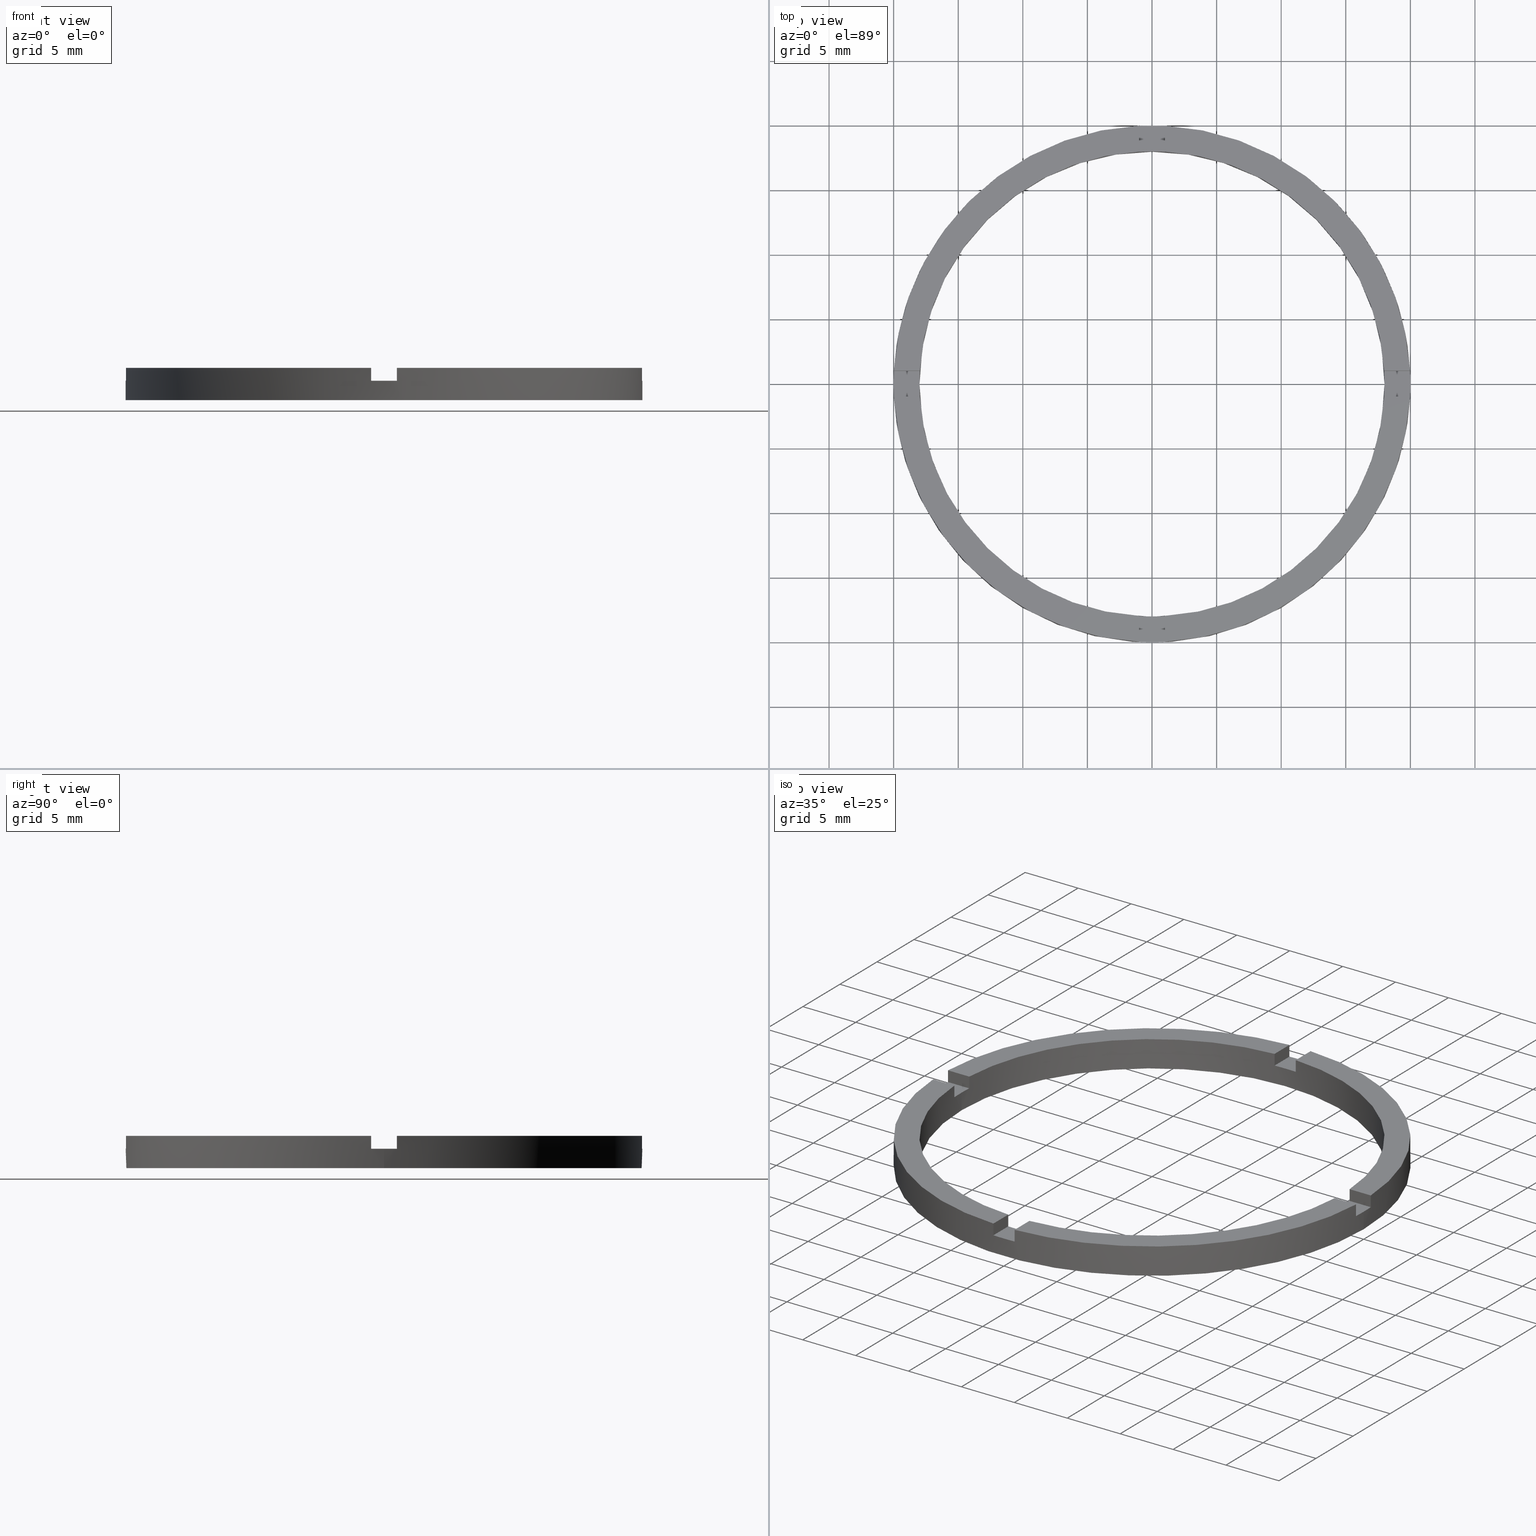
[diagram: canonical four-view strip — front | top / right | iso, engineering-drawing reading convention]
A machine part, canonical four-view strip (front | top / right | iso — engineering-drawing reading convention). The complete STEP part file that produces these views, byte-faithful:
ISO-10303-21;
HEADER;
FILE_DESCRIPTION (( 'STEP AP203' ),
    '1' );
FILE_NAME ('514086.step',
    '2024-12-26T02:36:12',
    ( 'MSI' ),
    ( '' ),
    'SwSTEP 2.0',
    'SolidWorks 2020',
    '' );
FILE_SCHEMA (( 'CONFIG_CONTROL_DESIGN' ));
ENDSEC;

DATA;
#1 = ORIENTED_EDGE ( 'NONE', *, *, #397, .F. ) ;
#2 = AXIS2_PLACEMENT_3D ( 'NONE', #396, #19, #80 ) ;
#3 = DIRECTION ( 'NONE',  ( 0.000000000000000000, 0.000000000000000000, 1.000000000000000000 ) ) ;
#4 = CARTESIAN_POINT ( 'NONE',  ( 17.97220075561143560, 0.9999999999998427924, 2.500000000000000000 ) ) ;
#5 = PLANE ( 'NONE',  #770 ) ;
#6 = CARTESIAN_POINT ( 'NONE',  ( -20.00000000000000000, 0.000000000000000000, 1.500000000000000000 ) ) ;
#7 = EDGE_CURVE ( 'NONE', #127, #643, #310, .T. ) ;
#8 = ORIENTED_EDGE ( 'NONE', *, *, #410, .T. ) ;
#9 = CARTESIAN_POINT ( 'NONE',  ( 0.9999999999999731326, 10.00000000000000000, 2.500000000000000000 ) ) ;
#10 = CARTESIAN_POINT ( 'NONE',  ( 0.9999999999998395728, -19.97498435543818829, 2.500000000000000000 ) ) ;
#11 = ORIENTED_EDGE ( 'NONE', *, *, #410, .F. ) ;
#12 = CARTESIAN_POINT ( 'NONE',  ( 0.000000000000000000, 0.000000000000000000, 1.500000000000000000 ) ) ;
#13 = ADVANCED_FACE ( 'NONE', ( #306 ), #15, .F. ) ;
#14 = PERSON_AND_ORGANIZATION_ROLE ( 'creator' ) ;
#15 = PLANE ( 'NONE',  #258 ) ;
#16 = APPLICATION_PROTOCOL_DEFINITION ( 'international standard', 'config_control_design', 1994, #758 ) ;
#17 = LINE ( 'NONE', #194, #279 ) ;
#18 = ADVANCED_FACE ( 'NONE', ( #301 ), #555, .T. ) ;
#19 = DIRECTION ( 'NONE',  ( 0.000000000000000000, 0.000000000000000000, 1.000000000000000000 ) ) ;
#20 = VERTEX_POINT ( 'NONE', #137 ) ;
#21 = VECTOR ( 'NONE', #203, 1000.000000000000000 ) ;
#22 = ORIENTED_EDGE ( 'NONE', *, *, #739, .T. ) ;
#23 = ADVANCED_FACE ( 'NONE', ( #568 ), #326, .T. ) ;
#24 = PRODUCT_DEFINITION_SHAPE ( 'NONE', 'NONE',  #701 ) ;
#25 = ORIENTED_EDGE ( 'NONE', *, *, #260, .T. ) ;
#26 = MANIFOLD_SOLID_BREP ( '�г�-����1', #230 ) ;
#27 = FACE_OUTER_BOUND ( 'NONE', #131, .T. ) ;
#28 = EDGE_CURVE ( 'NONE', #486, #573, #291, .T. ) ;
#29 = VECTOR ( 'NONE', #70, 1000.000000000000000 ) ;
#30 = LINE ( 'NONE', #220, #34 ) ;
#31 = CIRCLE ( 'NONE', #2, 18.00000000000000000 ) ;
#32 = FACE_OUTER_BOUND ( 'NONE', #94, .T. ) ;
#33 = DIRECTION ( 'NONE',  ( -0.000000000000000000, -0.000000000000000000, -1.000000000000000000 ) ) ;
#34 = VECTOR ( 'NONE', #266, 1000.000000000000000 ) ;
#35 = ORIENTED_EDGE ( 'NONE', *, *, #533, .T. ) ;
#36 = CIRCLE ( 'NONE', #578, 18.00000000000000000 ) ;
#37 = VECTOR ( 'NONE', #331, 1000.000000000000000 ) ;
#38 = CARTESIAN_POINT ( 'NONE',  ( 0.9999999999998382405, -10.00000000000018119, 1.500000000000000000 ) ) ;
#39 = AXIS2_PLACEMENT_3D ( 'NONE', #118, #340, #204 ) ;
#40 = VECTOR ( 'NONE', #750, 1000.000000000000000 ) ;
#41 = LINE ( 'NONE', #175, #562 ) ;
#42 = PLANE ( 'NONE',  #728 ) ;
#43 = LINE ( 'NONE', #433, #309 ) ;
#44 = CARTESIAN_POINT ( 'NONE',  ( 17.97220075561141783, -1.000000000000157208, 1.500000000000000000 ) ) ;
#45 = DIRECTION ( 'NONE',  ( 0.000000000000000000, 0.000000000000000000, 1.000000000000000000 ) ) ;
#46 = LINE ( 'NONE', #299, #536 ) ;
#47 = ORIENTED_EDGE ( 'NONE', *, *, #533, .F. ) ;
#48 = DIRECTION ( 'NONE',  ( 0.000000000000000000, 0.000000000000000000, 1.000000000000000000 ) ) ;
#49 = EDGE_LOOP ( 'NONE', ( #11, #270, #352, #221 ) ) ;
#50 = CARTESIAN_POINT ( 'NONE',  ( 0.9999999999998393507, -17.97220075561143560, 2.500000000000000000 ) ) ;
#51 = CIRCLE ( 'NONE', #284, 20.00000000000000000 ) ;
#52 = ORIENTED_EDGE ( 'NONE', *, *, #399, .T. ) ;
#53 = DIRECTION ( 'NONE',  ( 0.000000000000000000, 0.000000000000000000, 1.000000000000000000 ) ) ;
#54 = DIRECTION ( 'NONE',  ( -6.505213034913025371E-17, 1.000000000000000000, 0.000000000000000000 ) ) ;
#55 = ORIENTED_EDGE ( 'NONE', *, *, #473, .F. ) ;
#56 = ORIENTED_EDGE ( 'NONE', *, *, #265, .F. ) ;
#57 = DIRECTION ( 'NONE',  ( -0.000000000000000000, -0.000000000000000000, -1.000000000000000000 ) ) ;
#58 = CC_DESIGN_DATE_AND_TIME_ASSIGNMENT ( #654, #553, ( #701 ) ) ;
#59 = ORIENTED_EDGE ( 'NONE', *, *, #435, .F. ) ;
#60 = EDGE_CURVE ( 'NONE', #104, #383, #280, .T. ) ;
#61 = DIRECTION ( 'NONE',  ( 1.000000000000000000, 0.000000000000000000, -0.000000000000000000 ) ) ;
#62 = DIRECTION ( 'NONE',  ( -0.000000000000000000, 0.000000000000000000, 1.000000000000000000 ) ) ;
#63 = DIRECTION ( 'NONE',  ( 1.000000000000000000, 0.000000000000000000, 0.000000000000000000 ) ) ;
#64 = DIRECTION ( 'NONE',  ( 0.000000000000000000, 0.000000000000000000, 1.000000000000000000 ) ) ;
#65 = AXIS2_PLACEMENT_3D ( 'NONE', #591, #539, #354 ) ;
#66 = DIRECTION ( 'NONE',  ( 1.000000000000000000, 0.000000000000000000, -0.000000000000000000 ) ) ;
#67 = CARTESIAN_POINT ( 'NONE',  ( 0.000000000000000000, 0.000000000000000000, 2.500000000000000000 ) ) ;
#68 = CARTESIAN_POINT ( 'NONE',  ( 19.97498435543818829, 0.9999999999998430145, 2.500000000000000000 ) ) ;
#69 = EDGE_CURVE ( 'NONE', #485, #442, #565, .T. ) ;
#70 = DIRECTION ( 'NONE',  ( -0.000000000000000000, -0.000000000000000000, -1.000000000000000000 ) ) ;
#71 = AXIS2_PLACEMENT_3D ( 'NONE', #490, #211, #253 ) ;
#72 = DIRECTION ( 'NONE',  ( -1.000000000000000000, -1.734723475976807341E-16, 0.000000000000000000 ) ) ;
#73 = APPROVAL_ROLE ( '' ) ;
#74 = ADVANCED_FACE ( 'NONE', ( #286 ), #563, .F. ) ;
#75 = CARTESIAN_POINT ( 'NONE',  ( -1.000000000000161871, -10.00000000000018119, 1.500000000000000000 ) ) ;
#76 = ADVANCED_FACE ( 'NONE', ( #311 ), #592, .F. ) ;
#77 = APPROVAL_STATUS ( 'not_yet_approved' ) ;
#78 = CC_DESIGN_APPROVAL ( #580, ( #738 ) ) ;
#79 = EDGE_CURVE ( 'NONE', #629, #697, #292, .T. ) ;
#80 = DIRECTION ( 'NONE',  ( 1.000000000000000000, 0.000000000000000000, 0.000000000000000000 ) ) ;
#81 = ADVANCED_FACE ( 'NONE', ( #305 ), #602, .T. ) ;
#82 = CARTESIAN_POINT ( 'NONE',  ( -17.97220075561142849, -1.000000000000025313, 2.500000000000000000 ) ) ;
#83 = CC_DESIGN_APPROVAL ( #605, ( #701 ) ) ;
#84 = EDGE_CURVE ( 'NONE', #343, #356, #41, .T. ) ;
#85 = CARTESIAN_POINT ( 'NONE',  ( 0.9999999999999731326, 19.97498435543818118, 1.500000000000000000 ) ) ;
#86 = CARTESIAN_POINT ( 'NONE',  ( 9.999999999999994671, 0.9999999999998423483, 1.500000000000000000 ) ) ;
#87 = CARTESIAN_POINT ( 'NONE',  ( 0.000000000000000000, 0.000000000000000000, 2.500000000000000000 ) ) ;
#88 = CARTESIAN_POINT ( 'NONE',  ( 20.00000000000000000, 2.449293598294706513E-15, 1.500000000000000000 ) ) ;
#89 = ORIENTED_EDGE ( 'NONE', *, *, #487, .T. ) ;
#90 = ORIENTED_EDGE ( 'NONE', *, *, #461, .F. ) ;
#91 = CARTESIAN_POINT ( 'NONE',  ( -1.000000000000160538, -19.97498435543817052, 2.500000000000000000 ) ) ;
#92 = AXIS2_PLACEMENT_3D ( 'NONE', #209, #495, #727 ) ;
#93 = ORIENTED_EDGE ( 'NONE', *, *, #386, .T. ) ;
#94 = EDGE_LOOP ( 'NONE', ( #559, #467, #726, #350, #641, #296, #98, #47, #705, #320, #213, #372 ) ) ;
#95 = ORIENTED_EDGE ( 'NONE', *, *, #323, .T. ) ;
#96 = PLANE ( 'NONE',  #665 ) ;
#97 = DIRECTION ( 'NONE',  ( 0.000000000000000000, 0.000000000000000000, 1.000000000000000000 ) ) ;
#98 = ORIENTED_EDGE ( 'NONE', *, *, #514, .T. ) ;
#99 = AXIS2_PLACEMENT_3D ( 'NONE', #671, #257, #597 ) ;
#100 = CARTESIAN_POINT ( 'NONE',  ( 0.000000000000000000, 0.000000000000000000, 0.000000000000000000 ) ) ;
#101 = EDGE_LOOP ( 'NONE', ( #709, #56, #720, #498 ) ) ;
#102 = VERTEX_POINT ( 'NONE', #293 ) ;
#103 = DIRECTION ( 'NONE',  ( -0.000000000000000000, -0.000000000000000000, -1.000000000000000000 ) ) ;
#104 = VERTEX_POINT ( 'NONE', #412 ) ;
#105 = AXIS2_PLACEMENT_3D ( 'NONE', #100, #400, #114 ) ;
#106 = ORIENTED_EDGE ( 'NONE', *, *, #79, .T. ) ;
#107 = DIRECTION ( 'NONE',  ( -0.000000000000000000, -1.000000000000000000, -0.000000000000000000 ) ) ;
#108 = COORDINATED_UNIVERSAL_TIME_OFFSET ( 8, 0, .AHEAD. ) ;
#109 = ORIENTED_EDGE ( 'NONE', *, *, #143, .F. ) ;
#110 = ORIENTED_EDGE ( 'NONE', *, *, #272, .T. ) ;
#111 = DIRECTION ( 'NONE',  ( 1.000000000000000000, 0.000000000000000000, 0.000000000000000000 ) ) ;
#112 = ORIENTED_EDGE ( 'NONE', *, *, #777, .F. ) ;
#113 = EDGE_LOOP ( 'NONE', ( #725, #238, #647, #731 ) ) ;
#114 = DIRECTION ( 'NONE',  ( 1.000000000000000000, 0.000000000000000000, -0.000000000000000000 ) ) ;
#115 = EDGE_LOOP ( 'NONE', ( #112, #185, #121, #232, #90, #188, #707, #453, #760, #239, #756, #348 ) ) ;
#116 = ORIENTED_EDGE ( 'NONE', *, *, #515, .T. ) ;
#117 = CARTESIAN_POINT ( 'NONE',  ( -19.97498435543818118, -1.000000000000025757, 2.500000000000000000 ) ) ;
#118 = CARTESIAN_POINT ( 'NONE',  ( 0.000000000000000000, 0.000000000000000000, 1.500000000000000000 ) ) ;
#119 = ORIENTED_EDGE ( 'NONE', *, *, #386, .F. ) ;
#120 = PERSON ( 'δָ��', 'δָ��', 'δָ��', ('δָ��'), ('δָ��'), ('δָ��') ) ;
#121 = ORIENTED_EDGE ( 'NONE', *, *, #768, .F. ) ;
#122 = DIRECTION ( 'NONE',  ( -0.000000000000000000, 0.000000000000000000, 1.000000000000000000 ) ) ;
#123 = ORIENTED_EDGE ( 'NONE', *, *, #535, .T. ) ;
#124 = EDGE_CURVE ( 'NONE', #517, #697, #283, .T. ) ;
#125 = VERTEX_POINT ( 'NONE', #256 ) ;
#126 = CARTESIAN_POINT ( 'NONE',  ( -18.00000000000000000, 0.000000000000000000, 0.000000000000000000 ) ) ;
#127 = VERTEX_POINT ( 'NONE', #312 ) ;
#128 = CALENDAR_DATE ( 2024, 26, 12 ) ;
#129 = VERTEX_POINT ( 'NONE', #351 ) ;
#130 = CALENDAR_DATE ( 2024, 26, 12 ) ;
#131 = EDGE_LOOP ( 'NONE', ( #619, #59 ) ) ;
#132 = LOCAL_TIME ( 10, 36, 12.00000000000000000, #108 ) ;
#133 = DIRECTION ( 'NONE',  ( -1.000000000000000000, 0.000000000000000000, 0.000000000000000000 ) ) ;
#134 = PERSON_AND_ORGANIZATION_ROLE ( 'design_supplier' ) ;
#135 = COORDINATED_UNIVERSAL_TIME_OFFSET ( 8, 0, .AHEAD. ) ;
#136 = AXIS2_PLACEMENT_3D ( 'NONE', #276, #389, #484 ) ;
#137 = CARTESIAN_POINT ( 'NONE',  ( -17.97220075561142849, 0.9999999999999746869, 2.500000000000000000 ) ) ;
#138 = CARTESIAN_POINT ( 'NONE',  ( -17.97220075561142849, -1.000000000000025313, 1.500000000000000000 ) ) ;
#139 = ADVANCED_FACE ( 'NONE', ( #27, #570 ), #338, .F. ) ;
#140 = CALENDAR_DATE ( 2024, 26, 12 ) ;
#141 = EDGE_CURVE ( 'NONE', #749, #370, #46, .T. ) ;
#142 = APPROVAL_PERSON_ORGANIZATION ( #664, #167, #677 ) ;
#143 = EDGE_CURVE ( 'NONE', #624, #764, #314, .T. ) ;
#144 = PERSON_AND_ORGANIZATION ( #120, #417 ) ;
#145 = VECTOR ( 'NONE', #177, 1000.000000000000000 ) ;
#146 = FACE_OUTER_BOUND ( 'NONE', #226, .T. ) ;
#147 = CARTESIAN_POINT ( 'NONE',  ( 0.000000000000000000, 0.000000000000000000, 0.000000000000000000 ) ) ;
#148 = FACE_OUTER_BOUND ( 'NONE', #113, .T. ) ;
#149 = LINE ( 'NONE', #337, #404 ) ;
#150 = CARTESIAN_POINT ( 'NONE',  ( 0.9999999999999731326, 10.00000000000000000, 1.500000000000000000 ) ) ;
#151 = VECTOR ( 'NONE', #475, 1000.000000000000000 ) ;
#152 = AXIS2_PLACEMENT_3D ( 'NONE', #375, #761, #133 ) ;
#153 = LINE ( 'NONE', #636, #156 ) ;
#154 = CARTESIAN_POINT ( 'NONE',  ( -1.000000000000160760, -17.97220075561141783, 1.500000000000000000 ) ) ;
#155 = CALENDAR_DATE ( 2024, 26, 12 ) ;
#156 = VECTOR ( 'NONE', #297, 1000.000000000000000 ) ;
#157 = PRODUCT_DEFINITION_FORMATION_WITH_SPECIFIED_SOURCE ( '�κ�', '', #745, .NOT_KNOWN. ) ;
#158 = LINE ( 'NONE', #398, #429 ) ;
#159 = FACE_OUTER_BOUND ( 'NONE', #632, .T. ) ;
#160 = DIRECTION ( 'NONE',  ( 0.000000000000000000, 0.000000000000000000, 1.000000000000000000 ) ) ;
#161 = LINE ( 'NONE', #529, #408 ) ;
#162 = LINE ( 'NONE', #751, #145 ) ;
#163 = DIRECTION ( 'NONE',  ( 0.000000000000000000, -0.000000000000000000, 1.000000000000000000 ) ) ;
#164 = VECTOR ( 'NONE', #33, 1000.000000000000000 ) ;
#165 = DATE_AND_TIME ( #155, #427 ) ;
#166 = CIRCLE ( 'NONE', #325, 20.00000000000000000 ) ;
#167 = APPROVAL ( #604, 'δָ��' ) ;
#168 = VECTOR ( 'NONE', #222, 1000.000000000000000 ) ;
#169 = APPROVAL_ROLE ( '' ) ;
#170 = ORIENTED_EDGE ( 'NONE', *, *, #60, .F. ) ;
#171 = CIRCLE ( 'NONE', #765, 18.00000000000000000 ) ;
#172 = EDGE_CURVE ( 'NONE', #236, #573, #43, .T. ) ;
#173 = ORIENTED_EDGE ( 'NONE', *, *, #511, .F. ) ;
#174 = FACE_OUTER_BOUND ( 'NONE', #638, .T. ) ;
#175 = CARTESIAN_POINT ( 'NONE',  ( -17.97220075561142849, -1.000000000000025313, 2.500000000000000000 ) ) ;
#176 = LINE ( 'NONE', #335, #673 ) ;
#177 = DIRECTION ( 'NONE',  ( 1.000000000000000000, 1.734723475976807341E-16, -0.000000000000000000 ) ) ;
#178 = ORIENTED_EDGE ( 'NONE', *, *, #675, .F. ) ;
#179 = CIRCLE ( 'NONE', #277, 18.00000000000000000 ) ;
#180 = ORIENTED_EDGE ( 'NONE', *, *, #394, .F. ) ;
#181 = LINE ( 'NONE', #516, #441 ) ;
#182 = LINE ( 'NONE', #579, #430 ) ;
#183 = DESIGN_CONTEXT ( 'detailed design', #758, 'design' ) ;
#184 = CARTESIAN_POINT ( 'NONE',  ( 0.9999999999999731326, 10.00000000000000000, 1.500000000000000000 ) ) ;
#185 = ORIENTED_EDGE ( 'NONE', *, *, #650, .T. ) ;
#186 = LINE ( 'NONE', #584, #192 ) ;
#187 = DIRECTION ( 'NONE',  ( -0.000000000000000000, -0.000000000000000000, -1.000000000000000000 ) ) ;
#188 = ORIENTED_EDGE ( 'NONE', *, *, #428, .T. ) ;
#189 = CIRCLE ( 'NONE', #681, 18.00000000000000000 ) ;
#190 = PERSON_AND_ORGANIZATION_ROLE ( 'classification_officer' ) ;
#191 = ORIENTED_EDGE ( 'NONE', *, *, #780, .F. ) ;
#192 = VECTOR ( 'NONE', #103, 1000.000000000000000 ) ;
#193 = AXIS2_PLACEMENT_3D ( 'NONE', #234, #478, #627 ) ;
#194 = CARTESIAN_POINT ( 'NONE',  ( -1.000000000000026867, 17.97220075561142494, 2.500000000000000000 ) ) ;
#195 = ORIENTED_EDGE ( 'NONE', *, *, #491, .F. ) ;
#196 = VECTOR ( 'NONE', #307, 1000.000000000000000 ) ;
#197 = CARTESIAN_POINT ( 'NONE',  ( 0.000000000000000000, 0.000000000000000000, 1.500000000000000000 ) ) ;
#198 = LINE ( 'NONE', #522, #706 ) ;
#199 = DIRECTION ( 'NONE',  ( 0.000000000000000000, 1.000000000000000000, 0.000000000000000000 ) ) ;
#200 = EDGE_CURVE ( 'NONE', #442, #741, #571, .T. ) ;
#201 = ORIENTED_EDGE ( 'NONE', *, *, #511, .T. ) ;
#202 = DIRECTION ( 'NONE',  ( 0.000000000000000000, 0.000000000000000000, 1.000000000000000000 ) ) ;
#203 = DIRECTION ( 'NONE',  ( -0.000000000000000000, -0.000000000000000000, -1.000000000000000000 ) ) ;
#204 = DIRECTION ( 'NONE',  ( 1.000000000000000000, 0.000000000000000000, 0.000000000000000000 ) ) ;
#205 = PLANE ( 'NONE',  #595 ) ;
#206 = ORIENTED_EDGE ( 'NONE', *, *, #675, .T. ) ;
#207 = VECTOR ( 'NONE', #503, 1000.000000000000000 ) ;
#208 = DIRECTION ( 'NONE',  ( 0.000000000000000000, 0.000000000000000000, 1.000000000000000000 ) ) ;
#209 = CARTESIAN_POINT ( 'NONE',  ( 0.000000000000000000, 0.000000000000000000, 1.500000000000000000 ) ) ;
#210 = EDGE_CURVE ( 'NONE', #102, #741, #51, .T. ) ;
#211 = DIRECTION ( 'NONE',  ( 0.000000000000000000, -0.000000000000000000, 1.000000000000000000 ) ) ;
#212 = ORIENTED_EDGE ( 'NONE', *, *, #464, .T. ) ;
#213 = ORIENTED_EDGE ( 'NONE', *, *, #334, .T. ) ;
#214 = CC_DESIGN_DATE_AND_TIME_ASSIGNMENT ( #646, #663, ( #738 ) ) ;
#215 = EDGE_LOOP ( 'NONE', ( #616, #451, #698, #377, #1, #8 ) ) ;
#216 = CARTESIAN_POINT ( 'NONE',  ( 0.000000000000000000, 0.000000000000000000, 1.500000000000000000 ) ) ;
#217 = VERTEX_POINT ( 'NONE', #740 ) ;
#218 = EDGE_CURVE ( 'NONE', #304, #308, #551, .T. ) ;
#219 = SECURITY_CLASSIFICATION_LEVEL ( 'unclassified' ) ;
#220 = CARTESIAN_POINT ( 'NONE',  ( -10.00000000000018652, 0.9999999999999759082, 1.500000000000000000 ) ) ;
#221 = ORIENTED_EDGE ( 'NONE', *, *, #315, .F. ) ;
#222 = DIRECTION ( 'NONE',  ( 1.301042606982605321E-16, -1.000000000000000000, 0.000000000000000000 ) ) ;
#223 = ORIENTED_EDGE ( 'NONE', *, *, #766, .T. ) ;
#224 = VERTEX_POINT ( 'NONE', #44 ) ;
#225 = AXIS2_PLACEMENT_3D ( 'NONE', #243, #97, #590 ) ;
#226 = EDGE_LOOP ( 'NONE', ( #345, #617, #575, #55, #228, #574, #201, #447, #376, #382, #223, #500 ) ) ;
#227 = CARTESIAN_POINT ( 'NONE',  ( 18.00000000000000000, 2.204364238465235428E-15, 1.500000000000000000 ) ) ;
#228 = ORIENTED_EDGE ( 'NONE', *, *, #275, .T. ) ;
#229 = DIRECTION ( 'NONE',  ( 0.000000000000000000, 0.000000000000000000, 1.000000000000000000 ) ) ;
#230 = CLOSED_SHELL ( 'NONE', ( #374, #18, #763, #608, #564, #465, #139, #689, #74, #767, #13, #81, #328, #510, #23, #567, #614, #509, #606, #76, #678 ) ) ;
#231 = DIRECTION ( 'NONE',  ( 0.000000000000000000, 1.000000000000000000, 0.000000000000000000 ) ) ;
#232 = ORIENTED_EDGE ( 'NONE', *, *, #265, .T. ) ;
#233 = VERTEX_POINT ( 'NONE', #281 ) ;
#234 = CARTESIAN_POINT ( 'NONE',  ( 0.000000000000000000, 0.000000000000000000, 1.500000000000000000 ) ) ;
#235 = EDGE_LOOP ( 'NONE', ( #576, #35, #212, #173 ) ) ;
#236 = VERTEX_POINT ( 'NONE', #483 ) ;
#237 = AXIS2_PLACEMENT_3D ( 'NONE', #290, #208, #755 ) ;
#238 = ORIENTED_EDGE ( 'NONE', *, *, #334, .F. ) ;
#239 = ORIENTED_EDGE ( 'NONE', *, *, #491, .T. ) ;
#240 = DIRECTION ( 'NONE',  ( 0.000000000000000000, 0.000000000000000000, 1.000000000000000000 ) ) ;
#241 = EDGE_CURVE ( 'NONE', #764, #20, #36, .T. ) ;
#242 = CARTESIAN_POINT ( 'NONE',  ( 0.000000000000000000, 0.000000000000000000, 1.500000000000000000 ) ) ;
#243 = CARTESIAN_POINT ( 'NONE',  ( 0.000000000000000000, 0.000000000000000000, 2.500000000000000000 ) ) ;
#244 = DIRECTION ( 'NONE',  ( -0.000000000000000000, -0.000000000000000000, -1.000000000000000000 ) ) ;
#245 = DIRECTION ( 'NONE',  ( -0.000000000000000000, -0.000000000000000000, -1.000000000000000000 ) ) ;
#246 = DIRECTION ( 'NONE',  ( 1.734723475976807341E-16, -1.000000000000000000, 0.000000000000000000 ) ) ;
#247 = CARTESIAN_POINT ( 'NONE',  ( -1.000000000000160538, -19.97498435543817052, 2.500000000000000000 ) ) ;
#248 = DIRECTION ( 'NONE',  ( -1.301042606982605321E-16, 1.000000000000000000, -0.000000000000000000 ) ) ;
#249 = DIRECTION ( 'NONE',  ( 1.000000000000000000, 0.000000000000000000, -0.000000000000000000 ) ) ;
#250 = PLANE ( 'NONE',  #339 ) ;
#251 = CARTESIAN_POINT ( 'NONE',  ( 0.000000000000000000, 0.000000000000000000, 1.500000000000000000 ) ) ;
#252 = DIRECTION ( 'NONE',  ( 1.000000000000000000, 0.000000000000000000, 0.000000000000000000 ) ) ;
#253 = DIRECTION ( 'NONE',  ( 1.000000000000000000, 0.000000000000000000, -0.000000000000000000 ) ) ;
#254 = DIRECTION ( 'NONE',  ( -1.000000000000000000, 0.000000000000000000, 0.000000000000000000 ) ) ;
#255 = AXIS2_PLACEMENT_3D ( 'NONE', #474, #479, #737 ) ;
#256 = CARTESIAN_POINT ( 'NONE',  ( 0.9999999999998395728, -19.97498435543818829, 2.500000000000000000 ) ) ;
#257 = DIRECTION ( 'NONE',  ( 0.000000000000000000, 0.000000000000000000, 1.000000000000000000 ) ) ;
#258 = AXIS2_PLACEMENT_3D ( 'NONE', #268, #685, #72 ) ;
#259 = CARTESIAN_POINT ( 'NONE',  ( -18.00000000000000000, 0.000000000000000000, 1.500000000000000000 ) ) ;
#260 = EDGE_CURVE ( 'NONE', #764, #383, #17, .T. ) ;
#261 = CARTESIAN_POINT ( 'NONE',  ( 0.000000000000000000, 0.000000000000000000, 2.500000000000000000 ) ) ;
#262 = CARTESIAN_POINT ( 'NONE',  ( 0.000000000000000000, 0.000000000000000000, 2.500000000000000000 ) ) ;
#263 = CARTESIAN_POINT ( 'NONE',  ( -1.000000000000161871, -10.00000000000018119, 1.500000000000000000 ) ) ;
#264 = CARTESIAN_POINT ( 'NONE',  ( 0.000000000000000000, 0.000000000000000000, 1.500000000000000000 ) ) ;
#265 = EDGE_CURVE ( 'NONE', #471, #622, #547, .T. ) ;
#266 = DIRECTION ( 'NONE',  ( -1.000000000000000000, -1.734723475976807341E-16, 0.000000000000000000 ) ) ;
#267 = CARTESIAN_POINT ( 'NONE',  ( 9.999999999999994671, -1.000000000000157652, 1.500000000000000000 ) ) ;
#268 = CARTESIAN_POINT ( 'NONE',  ( -10.00000000000018652, 0.9999999999999759082, 1.500000000000000000 ) ) ;
#269 = EDGE_CURVE ( 'NONE', #304, #644, #288, .T. ) ;
#270 = ORIENTED_EDGE ( 'NONE', *, *, #724, .T. ) ;
#271 = CARTESIAN_POINT ( 'NONE',  ( 19.97498435543817408, -1.000000000000156986, 2.500000000000000000 ) ) ;
#272 = EDGE_CURVE ( 'NONE', #746, #236, #544, .T. ) ;
#273 = DIRECTION ( 'NONE',  ( 1.000000000000000000, 0.000000000000000000, 0.000000000000000000 ) ) ;
#274 = ORIENTED_EDGE ( 'NONE', *, *, #639, .T. ) ;
#275 = EDGE_CURVE ( 'NONE', #125, #236, #298, .T. ) ;
#276 = CARTESIAN_POINT ( 'NONE',  ( 0.000000000000000000, 0.000000000000000000, 1.500000000000000000 ) ) ;
#277 = AXIS2_PLACEMENT_3D ( 'NONE', #631, #333, #713 ) ;
#278 = PLANE ( 'NONE',  #379 ) ;
#279 = VECTOR ( 'NONE', #244, 1000.000000000000000 ) ;
#280 = LINE ( 'NONE', #344, #40 ) ;
#281 = CARTESIAN_POINT ( 'NONE',  ( 17.97220075561143560, 0.9999999999998427924, 1.500000000000000000 ) ) ;
#282 = DIRECTION ( 'NONE',  ( 1.000000000000000000, 0.000000000000000000, 0.000000000000000000 ) ) ;
#283 = LINE ( 'NONE', #117, #21 ) ;
#284 = AXIS2_PLACEMENT_3D ( 'NONE', #419, #660, #531 ) ;
#285 = VERTEX_POINT ( 'NONE', #259 ) ;
#286 = FACE_OUTER_BOUND ( 'NONE', #115, .T. ) ;
#287 = PLANE ( 'NONE',  #225 ) ;
#288 = LINE ( 'NONE', #68, #534 ) ;
#289 = LINE ( 'NONE', #444, #557 ) ;
#290 = CARTESIAN_POINT ( 'NONE',  ( 0.000000000000000000, 0.000000000000000000, 2.500000000000000000 ) ) ;
#291 = CIRCLE ( 'NONE', #771, 18.00000000000000000 ) ;
#292 = CIRCLE ( 'NONE', #455, 20.00000000000000000 ) ;
#293 = CARTESIAN_POINT ( 'NONE',  ( -20.00000000000000000, 0.000000000000000000, 0.000000000000000000 ) ) ;
#294 = CARTESIAN_POINT ( 'NONE',  ( 18.00000000000000000, 2.204364238465235428E-15, 2.500000000000000000 ) ) ;
#295 = DIRECTION ( 'NONE',  ( 1.301042606982605321E-16, -1.000000000000000000, 0.000000000000000000 ) ) ;
#296 = ORIENTED_EDGE ( 'NONE', *, *, #84, .F. ) ;
#297 = DIRECTION ( 'NONE',  ( 1.000000000000000000, 1.734723475976807341E-16, -0.000000000000000000 ) ) ;
#298 = LINE ( 'NONE', #10, #29 ) ;
#299 = CARTESIAN_POINT ( 'NONE',  ( 9.999999999999994671, -1.000000000000157652, 2.500000000000000000 ) ) ;
#300 = AXIS2_PLACEMENT_3D ( 'NONE', #264, #424, #668 ) ;
#301 = FACE_OUTER_BOUND ( 'NONE', #630, .T. ) ;
#302 = CARTESIAN_POINT ( 'NONE',  ( -10.00000000000018652, -1.000000000000023981, 1.500000000000000000 ) ) ;
#303 = CC_DESIGN_PERSON_AND_ORGANIZATION_ASSIGNMENT ( #369, #190, ( #738 ) ) ;
#304 = VERTEX_POINT ( 'NONE', #601 ) ;
#305 = FACE_OUTER_BOUND ( 'NONE', #611, .T. ) ;
#306 = FACE_OUTER_BOUND ( 'NONE', #613, .T. ) ;
#307 = DIRECTION ( 'NONE',  ( 0.000000000000000000, 0.000000000000000000, 1.000000000000000000 ) ) ;
#308 = VERTEX_POINT ( 'NONE', #357 ) ;
#309 = VECTOR ( 'NONE', #588, 1000.000000000000000 ) ;
#310 = CIRCLE ( 'NONE', #603, 18.00000000000000000 ) ;
#311 = FACE_OUTER_BOUND ( 'NONE', #759, .T. ) ;
#312 = CARTESIAN_POINT ( 'NONE',  ( 18.00000000000000000, 2.204364238465235428E-15, 0.000000000000000000 ) ) ;
#313 =( LENGTH_UNIT ( ) NAMED_UNIT ( * ) SI_UNIT ( .MILLI., .METRE. ) );
#314 = LINE ( 'NONE', #732, #540 ) ;
#315 = EDGE_CURVE ( 'NONE', #485, #370, #289, .T. ) ;
#316 = ORIENTED_EDGE ( 'NONE', *, *, #600, .T. ) ;
#317 = DIRECTION ( 'NONE',  ( -0.000000000000000000, -0.000000000000000000, -1.000000000000000000 ) ) ;
#318 = ORIENTED_EDGE ( 'NONE', *, *, #443, .F. ) ;
#319 = CARTESIAN_POINT ( 'NONE',  ( -19.97498435543818118, -1.000000000000025757, 1.500000000000000000 ) ) ;
#320 = ORIENTED_EDGE ( 'NONE', *, *, #399, .F. ) ;
#321 = ORIENTED_EDGE ( 'NONE', *, *, #593, .F. ) ;
#322 = DIRECTION ( 'NONE',  ( 0.000000000000000000, 0.000000000000000000, 1.000000000000000000 ) ) ;
#323 = EDGE_CURVE ( 'NONE', #217, #497, #30, .T. ) ;
#324 = DIRECTION ( 'NONE',  ( 1.000000000000000000, 0.000000000000000000, 0.000000000000000000 ) ) ;
#325 = AXIS2_PLACEMENT_3D ( 'NONE', #242, #163, #401 ) ;
#326 = PLANE ( 'NONE',  #300 ) ;
#327 = AXIS2_PLACEMENT_3D ( 'NONE', #12, #64, #249 ) ;
#328 = ADVANCED_FACE ( 'NONE', ( #546 ), #371, .F. ) ;
#329 = EDGE_CURVE ( 'NONE', #285, #643, #552, .T. ) ;
#330 = CARTESIAN_POINT ( 'NONE',  ( 9.999999999999994671, 0.9999999999998423483, 2.500000000000000000 ) ) ;
#331 = DIRECTION ( 'NONE',  ( -0.000000000000000000, -0.000000000000000000, -1.000000000000000000 ) ) ;
#332 = DIRECTION ( 'NONE',  ( -1.000000000000000000, -1.734723475976807341E-16, 0.000000000000000000 ) ) ;
#333 = DIRECTION ( 'NONE',  ( 0.000000000000000000, -0.000000000000000000, 1.000000000000000000 ) ) ;
#334 = EDGE_CURVE ( 'NONE', #477, #749, #31, .T. ) ;
#335 = CARTESIAN_POINT ( 'NONE',  ( 0.9999999999999731326, 17.97220075561142849, 2.500000000000000000 ) ) ;
#336 = DIRECTION ( 'NONE',  ( -0.000000000000000000, -0.000000000000000000, -1.000000000000000000 ) ) ;
#337 = CARTESIAN_POINT ( 'NONE',  ( 9.999999999999994671, 0.9999999999998423483, 1.500000000000000000 ) ) ;
#338 = PLANE ( 'NONE',  #105 ) ;
#339 = AXIS2_PLACEMENT_3D ( 'NONE', #302, #246, #743 ) ;
#340 = DIRECTION ( 'NONE',  ( 0.000000000000000000, 0.000000000000000000, 1.000000000000000000 ) ) ;
#341 = DIRECTION ( 'NONE',  ( 0.000000000000000000, 0.000000000000000000, 1.000000000000000000 ) ) ;
#342 = AXIS2_PLACEMENT_3D ( 'NONE', #38, #378, #561 ) ;
#343 = VERTEX_POINT ( 'NONE', #82 ) ;
#344 = CARTESIAN_POINT ( 'NONE',  ( -1.000000000000026867, 10.00000000000000000, 1.500000000000000000 ) ) ;
#345 = ORIENTED_EDGE ( 'NONE', *, *, #200, .F. ) ;
#346 = DIRECTION ( 'NONE',  ( 0.000000000000000000, 0.000000000000000000, 1.000000000000000000 ) ) ;
#347 = DIRECTION ( 'NONE',  ( 0.000000000000000000, 0.000000000000000000, 1.000000000000000000 ) ) ;
#348 = ORIENTED_EDGE ( 'NONE', *, *, #7, .F. ) ;
#349 = ORIENTED_EDGE ( 'NONE', *, *, #241, .F. ) ;
#350 = ORIENTED_EDGE ( 'NONE', *, *, #329, .F. ) ;
#351 = CARTESIAN_POINT ( 'NONE',  ( 0.9999999999999731326, 17.97220075561142849, 1.500000000000000000 ) ) ;
#352 = ORIENTED_EDGE ( 'NONE', *, *, #141, .T. ) ;
#353 =( NAMED_UNIT ( * ) PLANE_ANGLE_UNIT ( ) SI_UNIT ( $, .RADIAN. ) );
#354 = DIRECTION ( 'NONE',  ( 1.000000000000000000, 0.000000000000000000, 0.000000000000000000 ) ) ;
#355 = ORIENTED_EDGE ( 'NONE', *, *, #275, .F. ) ;
#356 = VERTEX_POINT ( 'NONE', #138 ) ;
#357 = CARTESIAN_POINT ( 'NONE',  ( 0.9999999999999731326, 19.97498435543818118, 2.500000000000000000 ) ) ;
#358 = VERTEX_POINT ( 'NONE', #512 ) ;
#359 = DIRECTION ( 'NONE',  ( 1.000000000000000000, -0.000000000000000000, 0.000000000000000000 ) ) ;
#360 = ORIENTED_EDGE ( 'NONE', *, *, #502, .T. ) ;
#361 = CARTESIAN_POINT ( 'NONE',  ( -1.000000000000160760, -17.97220075561141783, 2.500000000000000000 ) ) ;
#362 = CC_DESIGN_PERSON_AND_ORGANIZATION_ASSIGNMENT ( #657, #762, ( #745 ) ) ;
#363 = ORIENTED_EDGE ( 'NONE', *, *, #428, .F. ) ;
#364 = DIRECTION ( 'NONE',  ( 6.505213034913025371E-17, -1.000000000000000000, 0.000000000000000000 ) ) ;
#365 = ORIENTED_EDGE ( 'NONE', *, *, #435, .T. ) ;
#366 = VERTEX_POINT ( 'NONE', #227 ) ;
#367 = APPROVAL_DATE_TIME ( #661, #605 ) ;
#368 = ORIENTED_EDGE ( 'NONE', *, *, #143, .T. ) ;
#369 = PERSON_AND_ORGANIZATION ( #120, #417 ) ;
#370 = VERTEX_POINT ( 'NONE', #271 ) ;
#371 = PLANE ( 'NONE',  #342 ) ;
#372 = ORIENTED_EDGE ( 'NONE', *, *, #724, .F. ) ;
#373 = ORIENTED_EDGE ( 'NONE', *, *, #633, .F. ) ;
#374 = ADVANCED_FACE ( 'NONE', ( #32 ), #688, .F. ) ;
#375 = CARTESIAN_POINT ( 'NONE',  ( 0.000000000000000000, 0.000000000000000000, 2.500000000000000000 ) ) ;
#376 = ORIENTED_EDGE ( 'NONE', *, *, #124, .T. ) ;
#377 = ORIENTED_EDGE ( 'NONE', *, *, #650, .F. ) ;
#378 = DIRECTION ( 'NONE',  ( 1.000000000000000000, 1.301042606982605321E-16, 0.000000000000000000 ) ) ;
#379 = AXIS2_PLACEMENT_3D ( 'NONE', #263, #715, #775 ) ;
#380 = ORIENTED_EDGE ( 'NONE', *, *, #766, .F. ) ;
#381 = ORIENTED_EDGE ( 'NONE', *, *, #582, .F. ) ;
#382 = ORIENTED_EDGE ( 'NONE', *, *, #79, .F. ) ;
#383 = VERTEX_POINT ( 'NONE', #699 ) ;
#384 = LOCAL_TIME ( 10, 36, 12.00000000000000000, #628 ) ;
#385 = EDGE_LOOP ( 'NONE', ( #612, #642, #381, #123 ) ) ;
#386 = EDGE_CURVE ( 'NONE', #624, #104, #690, .T. ) ;
#387 = VERTEX_POINT ( 'NONE', #85 ) ;
#388 = PERSON_AND_ORGANIZATION ( #120, #417 ) ;
#389 = DIRECTION ( 'NONE',  ( 0.000000000000000000, 0.000000000000000000, 1.000000000000000000 ) ) ;
#390 = APPROVAL_PERSON_ORGANIZATION ( #651, #605, #73 ) ;
#391 = AXIS2_PLACEMENT_3D ( 'NONE', #774, #45, #282 ) ;
#392 = CARTESIAN_POINT ( 'NONE',  ( 19.97498435543817408, -1.000000000000156986, 1.500000000000000000 ) ) ;
#393 = CARTESIAN_POINT ( 'NONE',  ( -19.97498435543818118, -1.000000000000025757, 2.500000000000000000 ) ) ;
#394 = EDGE_CURVE ( 'NONE', #129, #387, #682, .T. ) ;
#395 = CALENDAR_DATE ( 2024, 26, 12 ) ;
#396 = CARTESIAN_POINT ( 'NONE',  ( 0.000000000000000000, 0.000000000000000000, 2.500000000000000000 ) ) ;
#397 = EDGE_CURVE ( 'NONE', #224, #366, #684, .T. ) ;
#398 = CARTESIAN_POINT ( 'NONE',  ( 0.9999999999998382405, -10.00000000000018119, 2.500000000000000000 ) ) ;
#399 = EDGE_CURVE ( 'NONE', #477, #573, #670, .T. ) ;
#400 = DIRECTION ( 'NONE',  ( 0.000000000000000000, 0.000000000000000000, 1.000000000000000000 ) ) ;
#401 = DIRECTION ( 'NONE',  ( 1.000000000000000000, 0.000000000000000000, 0.000000000000000000 ) ) ;
#402 = PERSON_AND_ORGANIZATION ( #120, #417 ) ;
#403 = APPROVAL_DATE_TIME ( #669, #167 ) ;
#404 = VECTOR ( 'NONE', #416, 1000.000000000000000 ) ;
#405 = DIRECTION ( 'NONE',  ( 0.000000000000000000, 0.000000000000000000, 1.000000000000000000 ) ) ;
#406 = CIRCLE ( 'NONE', #255, 20.00000000000000000 ) ;
#407 = DIRECTION ( 'NONE',  ( 1.000000000000000000, 6.505213034913025371E-17, 0.000000000000000000 ) ) ;
#408 = VECTOR ( 'NONE', #295, 1000.000000000000000 ) ;
#409 = CC_DESIGN_PERSON_AND_ORGANIZATION_ASSIGNMENT ( #402, #506, ( #701 ) ) ;
#410 = EDGE_CURVE ( 'NONE', #224, #485, #181, .T. ) ;
#411 = LINE ( 'NONE', #683, #448 ) ;
#412 = CARTESIAN_POINT ( 'NONE',  ( -1.000000000000026867, 19.97498435543817763, 1.500000000000000000 ) ) ;
#413 = CARTESIAN_POINT ( 'NONE',  ( -17.97220075561142849, 0.9999999999999746869, 2.500000000000000000 ) ) ;
#414 = CIRCLE ( 'NONE', #714, 20.00000000000000000 ) ;
#415 = CARTESIAN_POINT ( 'NONE',  ( 17.97220075561143560, 0.9999999999998427924, 2.500000000000000000 ) ) ;
#416 = DIRECTION ( 'NONE',  ( -1.000000000000000000, -6.505213034913025371E-17, -0.000000000000000000 ) ) ;
#417 = ORGANIZATION ( 'δָ��', 'δָ��', '' ) ;
#418 = LINE ( 'NONE', #91, #452 ) ;
#419 = CARTESIAN_POINT ( 'NONE',  ( 0.000000000000000000, 0.000000000000000000, 0.000000000000000000 ) ) ;
#420 = LOCAL_TIME ( 10, 36, 12.00000000000000000, #135 ) ;
#421 = FACE_OUTER_BOUND ( 'NONE', #235, .T. ) ;
#422 = SHAPE_DEFINITION_REPRESENTATION ( #24, #521 ) ;
#423 = FACE_OUTER_BOUND ( 'NONE', #101, .T. ) ;
#424 = DIRECTION ( 'NONE',  ( -0.000000000000000000, 0.000000000000000000, 1.000000000000000000 ) ) ;
#425 = DIRECTION ( 'NONE',  ( 0.000000000000000000, 0.000000000000000000, 1.000000000000000000 ) ) ;
#426 = VECTOR ( 'NONE', #231, 1000.000000000000000 ) ;
#427 = LOCAL_TIME ( 10, 36, 12.00000000000000000, #679 ) ;
#428 = EDGE_CURVE ( 'NONE', #129, #383, #179, .T. ) ;
#429 = VECTOR ( 'NONE', #248, 1000.000000000000000 ) ;
#430 = VECTOR ( 'NONE', #48, 1000.000000000000000 ) ;
#431 =( GEOMETRIC_REPRESENTATION_CONTEXT ( 3 ) GLOBAL_UNCERTAINTY_ASSIGNED_CONTEXT ( ( #482 ) ) GLOBAL_UNIT_ASSIGNED_CONTEXT ( ( #313, #353, #438 ) ) REPRESENTATION_CONTEXT ( 'NONE', 'WORKASPACE' ) );
#432 = FACE_OUTER_BOUND ( 'NONE', #609, .T. ) ;
#433 = CARTESIAN_POINT ( 'NONE',  ( 0.9999999999998382405, -10.00000000000018119, 1.500000000000000000 ) ) ;
#434 = CIRCLE ( 'NONE', #782, 18.00000000000000000 ) ;
#435 = EDGE_CURVE ( 'NONE', #741, #102, #694, .T. ) ;
#436 = VECTOR ( 'NONE', #199, 1000.000000000000000 ) ;
#437 = CARTESIAN_POINT ( 'NONE',  ( 0.000000000000000000, 0.000000000000000000, 1.500000000000000000 ) ) ;
#438 =( NAMED_UNIT ( * ) SI_UNIT ( $, .STERADIAN. ) SOLID_ANGLE_UNIT ( ) );
#439 = ORIENTED_EDGE ( 'NONE', *, *, #549, .F. ) ;
#440 = APPROVAL_DATE_TIME ( #165, #580 ) ;
#441 = VECTOR ( 'NONE', #581, 1000.000000000000000 ) ;
#442 = VERTEX_POINT ( 'NONE', #88 ) ;
#443 = EDGE_CURVE ( 'NONE', #387, #104, #166, .T. ) ;
#444 = CARTESIAN_POINT ( 'NONE',  ( 19.97498435543817408, -1.000000000000156986, 2.500000000000000000 ) ) ;
#445 = ORIENTED_EDGE ( 'NONE', *, *, #633, .T. ) ;
#446 = FACE_OUTER_BOUND ( 'NONE', #385, .T. ) ;
#447 = ORIENTED_EDGE ( 'NONE', *, *, #535, .F. ) ;
#448 = VECTOR ( 'NONE', #332, 1000.000000000000000 ) ;
#449 = AXIS2_PLACEMENT_3D ( 'NONE', #267, #364, #754 ) ;
#450 = DIRECTION ( 'NONE',  ( 0.000000000000000000, 0.000000000000000000, 1.000000000000000000 ) ) ;
#451 = ORIENTED_EDGE ( 'NONE', *, *, #780, .T. ) ;
#452 = VECTOR ( 'NONE', #505, 1000.000000000000000 ) ;
#453 = ORIENTED_EDGE ( 'NONE', *, *, #241, .T. ) ;
#454 = VECTOR ( 'NONE', #524, 1000.000000000000000 ) ;
#455 = AXIS2_PLACEMENT_3D ( 'NONE', #197, #3, #252 ) ;
#456 = ORIENTED_EDGE ( 'NONE', *, *, #200, .T. ) ;
#457 = ORIENTED_EDGE ( 'NONE', *, *, #124, .F. ) ;
#458 = FACE_OUTER_BOUND ( 'NONE', #757, .T. ) ;
#459 = APPLICATION_PROTOCOL_DEFINITION ( 'international standard', 'config_control_design', 1994, #687 ) ;
#460 = FACE_OUTER_BOUND ( 'NONE', #615, .T. ) ;
#461 = EDGE_CURVE ( 'NONE', #129, #622, #176, .T. ) ;
#462 = VERTEX_POINT ( 'NONE', #247 ) ;
#463 = LINE ( 'NONE', #528, #712 ) ;
#464 = EDGE_CURVE ( 'NONE', #735, #462, #161, .T. ) ;
#465 = ADVANCED_FACE ( 'NONE', ( #446 ), #287, .T. ) ;
#466 = LINE ( 'NONE', #4, #207 ) ;
#467 = ORIENTED_EDGE ( 'NONE', *, *, #777, .T. ) ;
#468 = CIRCLE ( 'NONE', #39, 20.00000000000000000 ) ;
#469 = LINE ( 'NONE', #294, #718 ) ;
#470 = ORIENTED_EDGE ( 'NONE', *, *, #28, .F. ) ;
#471 = VERTEX_POINT ( 'NONE', #415 ) ;
#472 = ORIENTED_EDGE ( 'NONE', *, *, #7, .T. ) ;
#473 = EDGE_CURVE ( 'NONE', #125, #370, #700, .T. ) ;
#474 = CARTESIAN_POINT ( 'NONE',  ( 0.000000000000000000, 0.000000000000000000, 2.500000000000000000 ) ) ;
#475 = DIRECTION ( 'NONE',  ( -0.000000000000000000, -0.000000000000000000, -1.000000000000000000 ) ) ;
#476 = AXIS2_PLACEMENT_3D ( 'NONE', #776, #240, #656 ) ;
#477 = VERTEX_POINT ( 'NONE', #523 ) ;
#478 = DIRECTION ( 'NONE',  ( 0.000000000000000000, 0.000000000000000000, 1.000000000000000000 ) ) ;
#479 = DIRECTION ( 'NONE',  ( 0.000000000000000000, 0.000000000000000000, 1.000000000000000000 ) ) ;
#480 = AXIS2_PLACEMENT_3D ( 'NONE', #554, #623, #618 ) ;
#481 = ORIENTED_EDGE ( 'NONE', *, *, #582, .T. ) ;
#482 = UNCERTAINTY_MEASURE_WITH_UNIT (LENGTH_MEASURE( 1.000000000000000082E-05 ), #313, 'distance_accuracy_value', 'NONE');
#483 = CARTESIAN_POINT ( 'NONE',  ( 0.9999999999998395728, -19.97498435543818829, 1.500000000000000000 ) ) ;
#484 = DIRECTION ( 'NONE',  ( 1.000000000000000000, 0.000000000000000000, 0.000000000000000000 ) ) ;
#485 = VERTEX_POINT ( 'NONE', #392 ) ;
#486 = VERTEX_POINT ( 'NONE', #154 ) ;
#487 = EDGE_CURVE ( 'NONE', #20, #358, #411, .T. ) ;
#488 = DIRECTION ( 'NONE',  ( 1.000000000000000000, 0.000000000000000000, 0.000000000000000000 ) ) ;
#489 = CARTESIAN_POINT ( 'NONE',  ( 20.00000000000000000, 2.449293598294706513E-15, 2.500000000000000000 ) ) ;
#490 = CARTESIAN_POINT ( 'NONE',  ( 0.000000000000000000, 0.000000000000000000, 1.500000000000000000 ) ) ;
#491 = EDGE_CURVE ( 'NONE', #217, #285, #702, .T. ) ;
#492 = CARTESIAN_POINT ( 'NONE',  ( 0.000000000000000000, 0.000000000000000000, 2.500000000000000000 ) ) ;
#493 = CARTESIAN_POINT ( 'NONE',  ( 0.000000000000000000, 0.000000000000000000, 2.500000000000000000 ) ) ;
#494 = ORIENTED_EDGE ( 'NONE', *, *, #739, .F. ) ;
#495 = DIRECTION ( 'NONE',  ( 0.000000000000000000, 0.000000000000000000, 1.000000000000000000 ) ) ;
#496 = DIRECTION ( 'NONE',  ( -1.000000000000000000, 0.000000000000000000, 0.000000000000000000 ) ) ;
#497 = VERTEX_POINT ( 'NONE', #518 ) ;
#498 = ORIENTED_EDGE ( 'NONE', *, *, #218, .T. ) ;
#499 = ORIENTED_EDGE ( 'NONE', *, *, #487, .F. ) ;
#500 = ORIENTED_EDGE ( 'NONE', *, *, #210, .T. ) ;
#501 = CARTESIAN_POINT ( 'NONE',  ( 0.000000000000000000, 0.000000000000000000, 1.500000000000000000 ) ) ;
#502 = EDGE_CURVE ( 'NONE', #486, #746, #674, .T. ) ;
#503 = DIRECTION ( 'NONE',  ( -0.000000000000000000, -0.000000000000000000, -1.000000000000000000 ) ) ;
#504 = DIRECTION ( 'NONE',  ( 0.000000000000000000, 0.000000000000000000, 1.000000000000000000 ) ) ;
#505 = DIRECTION ( 'NONE',  ( 0.000000000000000000, 0.000000000000000000, 1.000000000000000000 ) ) ;
#506 = PERSON_AND_ORGANIZATION_ROLE ( 'creator' ) ;
#507 = AXIS2_PLACEMENT_3D ( 'NONE', #508, #607, #324 ) ;
#508 = CARTESIAN_POINT ( 'NONE',  ( 0.000000000000000000, 0.000000000000000000, 0.000000000000000000 ) ) ;
#509 = ADVANCED_FACE ( 'NONE', ( #696 ), #773, .T. ) ;
#510 = ADVANCED_FACE ( 'NONE', ( #421 ), #278, .F. ) ;
#511 = EDGE_CURVE ( 'NONE', #746, #462, #418, .T. ) ;
#512 = CARTESIAN_POINT ( 'NONE',  ( -19.97498435543818118, 0.9999999999999742428, 2.500000000000000000 ) ) ;
#513 = CC_DESIGN_PERSON_AND_ORGANIZATION_ASSIGNMENT ( #666, #14, ( #157 ) ) ;
#514 = EDGE_CURVE ( 'NONE', #343, #735, #434, .T. ) ;
#515 = EDGE_CURVE ( 'NONE', #304, #471, #704, .T. ) ;
#516 = CARTESIAN_POINT ( 'NONE',  ( 9.999999999999994671, -1.000000000000157652, 1.500000000000000000 ) ) ;
#517 = VERTEX_POINT ( 'NONE', #393 ) ;
#518 = CARTESIAN_POINT ( 'NONE',  ( -19.97498435543818118, 0.9999999999999742428, 1.500000000000000000 ) ) ;
#519 = DIRECTION ( 'NONE',  ( -1.000000000000000000, -6.505213034913025371E-17, 0.000000000000000000 ) ) ;
#520 = AXIS2_PLACEMENT_3D ( 'NONE', #216, #160, #635 ) ;
#521 = ADVANCED_BREP_SHAPE_REPRESENTATION ( '514086', ( #26, #507 ), #431 ) ;
#522 = CARTESIAN_POINT ( 'NONE',  ( -19.97498435543818118, 0.9999999999999742428, 2.500000000000000000 ) ) ;
#523 = CARTESIAN_POINT ( 'NONE',  ( 0.9999999999998393507, -17.97220075561143560, 2.500000000000000000 ) ) ;
#524 = DIRECTION ( 'NONE',  ( -1.000000000000000000, -6.505213034913025371E-17, -0.000000000000000000 ) ) ;
#525 = EDGE_LOOP ( 'NONE', ( #110, #717, #470, #360 ) ) ;
#526 = DIRECTION ( 'NONE',  ( 1.000000000000000000, 0.000000000000000000, 0.000000000000000000 ) ) ;
#527 = EDGE_CURVE ( 'NONE', #125, #477, #158, .T. ) ;
#528 = CARTESIAN_POINT ( 'NONE',  ( 17.97220075561141783, -1.000000000000157208, 2.500000000000000000 ) ) ;
#529 = CARTESIAN_POINT ( 'NONE',  ( -1.000000000000161871, -10.00000000000018119, 2.500000000000000000 ) ) ;
#530 = AXIS2_PLACEMENT_3D ( 'NONE', #262, #187, #496 ) ;
#531 = DIRECTION ( 'NONE',  ( 1.000000000000000000, 0.000000000000000000, 0.000000000000000000 ) ) ;
#532 = DIRECTION ( 'NONE',  ( -1.000000000000000000, 0.000000000000000000, 0.000000000000000000 ) ) ;
#533 = EDGE_CURVE ( 'NONE', #486, #735, #182, .T. ) ;
#534 = VECTOR ( 'NONE', #317, 1000.000000000000000 ) ;
#535 = EDGE_CURVE ( 'NONE', #517, #462, #406, .T. ) ;
#536 = VECTOR ( 'NONE', #407, 1000.000000000000000 ) ;
#537 = CARTESIAN_POINT ( 'NONE',  ( -1.000000000000026867, 17.97220075561142494, 2.500000000000000000 ) ) ;
#538 = ORIENTED_EDGE ( 'NONE', *, *, #443, .T. ) ;
#539 = DIRECTION ( 'NONE',  ( 0.000000000000000000, 0.000000000000000000, 1.000000000000000000 ) ) ;
#540 = VECTOR ( 'NONE', #107, 1000.000000000000000 ) ;
#541 = PLANE ( 'NONE',  #449 ) ;
#542 = DIRECTION ( 'NONE',  ( 1.000000000000000000, 0.000000000000000000, 0.000000000000000000 ) ) ;
#543 = VECTOR ( 'NONE', #57, 1000.000000000000000 ) ;
#544 = CIRCLE ( 'NONE', #686, 20.00000000000000000 ) ;
#545 = ORIENTED_EDGE ( 'NONE', *, *, #172, .F. ) ;
#546 = FACE_OUTER_BOUND ( 'NONE', #645, .T. ) ;
#547 = CIRCLE ( 'NONE', #237, 18.00000000000000000 ) ;
#548 = CC_DESIGN_PERSON_AND_ORGANIZATION_ASSIGNMENT ( #144, #134, ( #157 ) ) ;
#549 = EDGE_CURVE ( 'NONE', #387, #308, #692, .T. ) ;
#550 = CARTESIAN_POINT ( 'NONE',  ( 0.000000000000000000, 0.000000000000000000, 2.500000000000000000 ) ) ;
#551 = CIRCLE ( 'NONE', #733, 20.00000000000000000 ) ;
#552 = LINE ( 'NONE', #577, #37 ) ;
#553 = DATE_TIME_ROLE ( 'creation_date' ) ;
#554 = CARTESIAN_POINT ( 'NONE',  ( 0.000000000000000000, 0.000000000000000000, 2.500000000000000000 ) ) ;
#555 = CYLINDRICAL_SURFACE ( 'NONE', #152, 20.00000000000000000 ) ;
#556 = CARTESIAN_POINT ( 'NONE',  ( 0.9999999999999731326, 17.97220075561142849, 2.500000000000000000 ) ) ;
#557 = VECTOR ( 'NONE', #504, 1000.000000000000000 ) ;
#558 = DIRECTION ( 'NONE',  ( 1.000000000000000000, 0.000000000000000000, 0.000000000000000000 ) ) ;
#559 = ORIENTED_EDGE ( 'NONE', *, *, #397, .T. ) ;
#560 = MECHANICAL_CONTEXT ( 'NONE', #687, 'mechanical' ) ;
#561 = DIRECTION ( 'NONE',  ( -1.301042606982605321E-16, 1.000000000000000000, 0.000000000000000000 ) ) ;
#562 = VECTOR ( 'NONE', #245, 1000.000000000000000 ) ;
#563 = CYLINDRICAL_SURFACE ( 'NONE', #598, 18.00000000000000000 ) ;
#564 = ADVANCED_FACE ( 'NONE', ( #148 ), #716, .T. ) ;
#565 = CIRCLE ( 'NONE', #92, 20.00000000000000000 ) ;
#566 = AXIS2_PLACEMENT_3D ( 'NONE', #492, #405, #488 ) ;
#567 = ADVANCED_FACE ( 'NONE', ( #159 ), #42, .F. ) ;
#568 = FACE_OUTER_BOUND ( 'NONE', #525, .T. ) ;
#569 = AXIS2_PLACEMENT_3D ( 'NONE', #184, #359, #596 ) ;
#570 = FACE_BOUND ( 'NONE', #748, .T. ) ;
#571 = LINE ( 'NONE', #489, #543 ) ;
#572 = ORIENTED_EDGE ( 'NONE', *, *, #269, .F. ) ;
#573 = VERTEX_POINT ( 'NONE', #583 ) ;
#574 = ORIENTED_EDGE ( 'NONE', *, *, #272, .F. ) ;
#575 = ORIENTED_EDGE ( 'NONE', *, *, #315, .T. ) ;
#576 = ORIENTED_EDGE ( 'NONE', *, *, #502, .F. ) ;
#577 = CARTESIAN_POINT ( 'NONE',  ( -18.00000000000000000, 0.000000000000000000, 2.500000000000000000 ) ) ;
#578 = AXIS2_PLACEMENT_3D ( 'NONE', #87, #202, #640 ) ;
#579 = CARTESIAN_POINT ( 'NONE',  ( -1.000000000000160760, -17.97220075561141783, 2.500000000000000000 ) ) ;
#580 = APPROVAL ( #659, 'δָ��' ) ;
#581 = DIRECTION ( 'NONE',  ( 1.000000000000000000, 6.505213034913025371E-17, 0.000000000000000000 ) ) ;
#582 = EDGE_CURVE ( 'NONE', #517, #343, #153, .T. ) ;
#583 = CARTESIAN_POINT ( 'NONE',  ( 0.9999999999998393507, -17.97220075561143560, 1.500000000000000000 ) ) ;
#584 = CARTESIAN_POINT ( 'NONE',  ( -20.00000000000000000, 0.000000000000000000, 2.500000000000000000 ) ) ;
#585 = DIRECTION ( 'NONE',  ( 0.000000000000000000, 0.000000000000000000, 1.000000000000000000 ) ) ;
#586 = CARTESIAN_POINT ( 'NONE',  ( 0.9999999999999731326, 19.97498435543818118, 2.500000000000000000 ) ) ;
#587 = CC_DESIGN_SECURITY_CLASSIFICATION ( #738, ( #157 ) ) ;
#588 = DIRECTION ( 'NONE',  ( -1.301042606982605321E-16, 1.000000000000000000, -0.000000000000000000 ) ) ;
#589 = CARTESIAN_POINT ( 'NONE',  ( 0.000000000000000000, 0.000000000000000000, 1.500000000000000000 ) ) ;
#590 = DIRECTION ( 'NONE',  ( 1.000000000000000000, 0.000000000000000000, -0.000000000000000000 ) ) ;
#591 = CARTESIAN_POINT ( 'NONE',  ( 0.000000000000000000, 0.000000000000000000, 2.500000000000000000 ) ) ;
#592 = PLANE ( 'NONE',  #569 ) ;
#593 = EDGE_CURVE ( 'NONE', #644, #233, #149, .T. ) ;
#594 = DIRECTION ( 'NONE',  ( 0.000000000000000000, 0.000000000000000000, 1.000000000000000000 ) ) ;
#595 = AXIS2_PLACEMENT_3D ( 'NONE', #744, #254, #347 ) ;
#596 = DIRECTION ( 'NONE',  ( 0.000000000000000000, 0.000000000000000000, -1.000000000000000000 ) ) ;
#597 = DIRECTION ( 'NONE',  ( 1.000000000000000000, 0.000000000000000000, 0.000000000000000000 ) ) ;
#598 = AXIS2_PLACEMENT_3D ( 'NONE', #261, #734, #532 ) ;
#599 = CARTESIAN_POINT ( 'NONE',  ( -1.000000000000026867, 19.97498435543817763, 2.500000000000000000 ) ) ;
#600 = EDGE_CURVE ( 'NONE', #624, #358, #676, .T. ) ;
#601 = CARTESIAN_POINT ( 'NONE',  ( 19.97498435543818829, 0.9999999999998430145, 2.500000000000000000 ) ) ;
#602 = PLANE ( 'NONE',  #327 ) ;
#603 = AXIS2_PLACEMENT_3D ( 'NONE', #147, #229, #273 ) ;
#604 = APPROVAL_STATUS ( 'not_yet_approved' ) ;
#605 = APPROVAL ( #77, 'δָ��' ) ;
#606 = ADVANCED_FACE ( 'NONE', ( #174 ), #205, .F. ) ;
#607 = DIRECTION ( 'NONE',  ( 0.000000000000000000, 0.000000000000000000, 1.000000000000000000 ) ) ;
#608 = ADVANCED_FACE ( 'NONE', ( #423 ), #5, .T. ) ;
#609 = EDGE_LOOP ( 'NONE', ( #538, #695, #363, #711 ) ) ;
#610 = ORIENTED_EDGE ( 'NONE', *, *, #461, .T. ) ;
#611 = EDGE_LOOP ( 'NONE', ( #445, #106, #206, #721, #195, #95 ) ) ;
#612 = ORIENTED_EDGE ( 'NONE', *, *, #464, .F. ) ;
#613 = EDGE_LOOP ( 'NONE', ( #742, #753, #89, #494 ) ) ;
#614 = ADVANCED_FACE ( 'NONE', ( #667 ), #541, .F. ) ;
#615 = EDGE_LOOP ( 'NONE', ( #481, #626, #178, #457 ) ) ;
#616 = ORIENTED_EDGE ( 'NONE', *, *, #69, .T. ) ;
#617 = ORIENTED_EDGE ( 'NONE', *, *, #69, .F. ) ;
#618 = DIRECTION ( 'NONE',  ( -1.000000000000000000, 0.000000000000000000, 0.000000000000000000 ) ) ;
#619 = ORIENTED_EDGE ( 'NONE', *, *, #210, .F. ) ;
#620 = ORIENTED_EDGE ( 'NONE', *, *, #527, .T. ) ;
#621 = ORIENTED_EDGE ( 'NONE', *, *, #218, .F. ) ;
#622 = VERTEX_POINT ( 'NONE', #556 ) ;
#623 = DIRECTION ( 'NONE',  ( -0.000000000000000000, -0.000000000000000000, -1.000000000000000000 ) ) ;
#624 = VERTEX_POINT ( 'NONE', #599 ) ;
#625 = LOCAL_TIME ( 10, 36, 12.00000000000000000, #662 ) ;
#626 = ORIENTED_EDGE ( 'NONE', *, *, #84, .T. ) ;
#627 = DIRECTION ( 'NONE',  ( 1.000000000000000000, 0.000000000000000000, 0.000000000000000000 ) ) ;
#628 = COORDINATED_UNIVERSAL_TIME_OFFSET ( 8, 0, .AHEAD. ) ;
#629 = VERTEX_POINT ( 'NONE', #6 ) ;
#630 = EDGE_LOOP ( 'NONE', ( #191, #456, #365, #380, #373, #22, #729, #93, #318, #637, #621, #634 ) ) ;
#631 = CARTESIAN_POINT ( 'NONE',  ( 0.000000000000000000, 0.000000000000000000, 1.500000000000000000 ) ) ;
#632 = EDGE_LOOP ( 'NONE', ( #116, #703, #321, #572 ) ) ;
#633 = EDGE_CURVE ( 'NONE', #497, #629, #414, .T. ) ;
#634 = ORIENTED_EDGE ( 'NONE', *, *, #269, .T. ) ;
#635 = DIRECTION ( 'NONE',  ( 1.000000000000000000, 0.000000000000000000, -0.000000000000000000 ) ) ;
#636 = CARTESIAN_POINT ( 'NONE',  ( -10.00000000000018652, -1.000000000000023981, 2.500000000000000000 ) ) ;
#637 = ORIENTED_EDGE ( 'NONE', *, *, #549, .T. ) ;
#638 = EDGE_LOOP ( 'NONE', ( #368, #25, #170, #119 ) ) ;
#639 = EDGE_CURVE ( 'NONE', #622, #308, #693, .T. ) ;
#640 = DIRECTION ( 'NONE',  ( 1.000000000000000000, 0.000000000000000000, 0.000000000000000000 ) ) ;
#641 = ORIENTED_EDGE ( 'NONE', *, *, #719, .T. ) ;
#642 = ORIENTED_EDGE ( 'NONE', *, *, #514, .F. ) ;
#643 = VERTEX_POINT ( 'NONE', #126 ) ;
#644 = VERTEX_POINT ( 'NONE', #655 ) ;
#645 = EDGE_LOOP ( 'NONE', ( #620, #52, #545, #355 ) ) ;
#646 = DATE_AND_TIME ( #128, #384 ) ;
#647 = ORIENTED_EDGE ( 'NONE', *, *, #527, .F. ) ;
#648 = CARTESIAN_POINT ( 'NONE',  ( 20.00000000000000000, 2.449293598294706513E-15, 0.000000000000000000 ) ) ;
#649 = APPROVAL_PERSON_ORGANIZATION ( #388, #580, #169 ) ;
#650 = EDGE_CURVE ( 'NONE', #366, #233, #171, .T. ) ;
#651 = PERSON_AND_ORGANIZATION ( #120, #417 ) ;
#652 = DIRECTION ( 'NONE',  ( 0.000000000000000000, 0.000000000000000000, 1.000000000000000000 ) ) ;
#653 = EDGE_CURVE ( 'NONE', #643, #127, #680, .T. ) ;
#654 = DATE_AND_TIME ( #140, #625 ) ;
#655 = CARTESIAN_POINT ( 'NONE',  ( 19.97498435543818829, 0.9999999999998430145, 1.500000000000000000 ) ) ;
#656 = DIRECTION ( 'NONE',  ( 1.000000000000000000, 0.000000000000000000, -0.000000000000000000 ) ) ;
#657 = PERSON_AND_ORGANIZATION ( #120, #417 ) ;
#658 = DIRECTION ( 'NONE',  ( 0.000000000000000000, 0.000000000000000000, 1.000000000000000000 ) ) ;
#659 = APPROVAL_STATUS ( 'not_yet_approved' ) ;
#660 = DIRECTION ( 'NONE',  ( 0.000000000000000000, 0.000000000000000000, 1.000000000000000000 ) ) ;
#661 = DATE_AND_TIME ( #130, #420 ) ;
#662 = COORDINATED_UNIVERSAL_TIME_OFFSET ( 8, 0, .AHEAD. ) ;
#663 = DATE_TIME_ROLE ( 'classification_date' ) ;
#664 = PERSON_AND_ORGANIZATION ( #120, #417 ) ;
#665 = AXIS2_PLACEMENT_3D ( 'NONE', #722, #450, #66 ) ;
#666 = PERSON_AND_ORGANIZATION ( #120, #417 ) ;
#667 = FACE_OUTER_BOUND ( 'NONE', #49, .T. ) ;
#668 = DIRECTION ( 'NONE',  ( 1.000000000000000000, 0.000000000000000000, 0.000000000000000000 ) ) ;
#669 = DATE_AND_TIME ( #395, #132 ) ;
#670 = LINE ( 'NONE', #50, #151 ) ;
#671 = CARTESIAN_POINT ( 'NONE',  ( 0.000000000000000000, 0.000000000000000000, 0.000000000000000000 ) ) ;
#672 = VECTOR ( 'NONE', #341, 1000.000000000000000 ) ;
#673 = VECTOR ( 'NONE', #585, 1000.000000000000000 ) ;
#674 = LINE ( 'NONE', #75, #168 ) ;
#675 = EDGE_CURVE ( 'NONE', #697, #356, #162, .T. ) ;
#676 = CIRCLE ( 'NONE', #65, 20.00000000000000000 ) ;
#677 = APPROVAL_ROLE ( '' ) ;
#678 = ADVANCED_FACE ( 'NONE', ( #432 ), #730, .T. ) ;
#679 = COORDINATED_UNIVERSAL_TIME_OFFSET ( 8, 0, .AHEAD. ) ;
#680 = CIRCLE ( 'NONE', #99, 18.00000000000000000 ) ;
#681 = AXIS2_PLACEMENT_3D ( 'NONE', #501, #594, #111 ) ;
#682 = LINE ( 'NONE', #150, #426 ) ;
#683 = CARTESIAN_POINT ( 'NONE',  ( -10.00000000000018652, 0.9999999999999759082, 2.500000000000000000 ) ) ;
#684 = CIRCLE ( 'NONE', #136, 18.00000000000000000 ) ;
#685 = DIRECTION ( 'NONE',  ( -1.734723475976807341E-16, 1.000000000000000000, 0.000000000000000000 ) ) ;
#686 = AXIS2_PLACEMENT_3D ( 'NONE', #747, #122, #542 ) ;
#687 = APPLICATION_CONTEXT ( 'configuration controlled 3d designs of mechanical parts and assemblies' ) ;
#688 = CYLINDRICAL_SURFACE ( 'NONE', #480, 18.00000000000000000 ) ;
#689 = ADVANCED_FACE ( 'NONE', ( #146 ), #708, .T. ) ;
#690 = LINE ( 'NONE', #769, #164 ) ;
#691 = EDGE_CURVE ( 'NONE', #217, #20, #710, .T. ) ;
#692 = LINE ( 'NONE', #586, #672 ) ;
#693 = LINE ( 'NONE', #9, #436 ) ;
#694 = CIRCLE ( 'NONE', #391, 20.00000000000000000 ) ;
#695 = ORIENTED_EDGE ( 'NONE', *, *, #60, .T. ) ;
#696 = FACE_OUTER_BOUND ( 'NONE', #215, .T. ) ;
#697 = VERTEX_POINT ( 'NONE', #319 ) ;
#698 = ORIENTED_EDGE ( 'NONE', *, *, #593, .T. ) ;
#699 = CARTESIAN_POINT ( 'NONE',  ( -1.000000000000026867, 17.97220075561142494, 1.500000000000000000 ) ) ;
#700 = CIRCLE ( 'NONE', #566, 20.00000000000000000 ) ;
#701 = PRODUCT_DEFINITION ( 'δ֪', '', #157, #183 ) ;
#702 = CIRCLE ( 'NONE', #193, 18.00000000000000000 ) ;
#703 = ORIENTED_EDGE ( 'NONE', *, *, #768, .T. ) ;
#704 = LINE ( 'NONE', #330, #454 ) ;
#705 = ORIENTED_EDGE ( 'NONE', *, *, #28, .T. ) ;
#706 = VECTOR ( 'NONE', #53, 1000.000000000000000 ) ;
#707 = ORIENTED_EDGE ( 'NONE', *, *, #260, .F. ) ;
#708 = CYLINDRICAL_SURFACE ( 'NONE', #530, 20.00000000000000000 ) ;
#709 = ORIENTED_EDGE ( 'NONE', *, *, #639, .F. ) ;
#710 = LINE ( 'NONE', #413, #196 ) ;
#711 = ORIENTED_EDGE ( 'NONE', *, *, #394, .T. ) ;
#712 = VECTOR ( 'NONE', #346, 1000.000000000000000 ) ;
#713 = DIRECTION ( 'NONE',  ( 1.000000000000000000, 0.000000000000000000, 0.000000000000000000 ) ) ;
#714 = AXIS2_PLACEMENT_3D ( 'NONE', #251, #425, #779 ) ;
#715 = DIRECTION ( 'NONE',  ( -1.000000000000000000, -1.301042606982605321E-16, 0.000000000000000000 ) ) ;
#716 = PLANE ( 'NONE',  #476 ) ;
#717 = ORIENTED_EDGE ( 'NONE', *, *, #172, .T. ) ;
#718 = VECTOR ( 'NONE', #336, 1000.000000000000000 ) ;
#719 = EDGE_CURVE ( 'NONE', #285, #356, #189, .T. ) ;
#720 = ORIENTED_EDGE ( 'NONE', *, *, #515, .F. ) ;
#721 = ORIENTED_EDGE ( 'NONE', *, *, #719, .F. ) ;
#722 = CARTESIAN_POINT ( 'NONE',  ( 0.000000000000000000, 0.000000000000000000, 2.500000000000000000 ) ) ;
#723 = ORIENTED_EDGE ( 'NONE', *, *, #653, .T. ) ;
#724 = EDGE_CURVE ( 'NONE', #224, #749, #463, .T. ) ;
#725 = ORIENTED_EDGE ( 'NONE', *, *, #141, .F. ) ;
#726 = ORIENTED_EDGE ( 'NONE', *, *, #653, .F. ) ;
#727 = DIRECTION ( 'NONE',  ( 1.000000000000000000, 0.000000000000000000, 0.000000000000000000 ) ) ;
#728 = AXIS2_PLACEMENT_3D ( 'NONE', #86, #54, #519 ) ;
#729 = ORIENTED_EDGE ( 'NONE', *, *, #600, .F. ) ;
#730 = PLANE ( 'NONE',  #71 ) ;
#731 = ORIENTED_EDGE ( 'NONE', *, *, #473, .T. ) ;
#732 = CARTESIAN_POINT ( 'NONE',  ( -1.000000000000026867, 10.00000000000000000, 2.500000000000000000 ) ) ;
#733 = AXIS2_PLACEMENT_3D ( 'NONE', #493, #652, #781 ) ;
#734 = DIRECTION ( 'NONE',  ( -0.000000000000000000, -0.000000000000000000, -1.000000000000000000 ) ) ;
#735 = VERTEX_POINT ( 'NONE', #361 ) ;
#736 = CARTESIAN_POINT ( 'NONE',  ( -1.000000000000160538, -19.97498435543817052, 1.500000000000000000 ) ) ;
#737 = DIRECTION ( 'NONE',  ( 1.000000000000000000, 0.000000000000000000, 0.000000000000000000 ) ) ;
#738 = SECURITY_CLASSIFICATION ( '', '', #219 ) ;
#739 = EDGE_CURVE ( 'NONE', #497, #358, #198, .T. ) ;
#740 = CARTESIAN_POINT ( 'NONE',  ( -17.97220075561142849, 0.9999999999999746869, 1.500000000000000000 ) ) ;
#741 = VERTEX_POINT ( 'NONE', #648 ) ;
#742 = ORIENTED_EDGE ( 'NONE', *, *, #323, .F. ) ;
#743 = DIRECTION ( 'NONE',  ( 1.000000000000000000, 1.734723475976807341E-16, 0.000000000000000000 ) ) ;
#744 = CARTESIAN_POINT ( 'NONE',  ( -1.000000000000026867, 10.00000000000000000, 1.500000000000000000 ) ) ;
#745 = PRODUCT ( '514086', '514086', '', ( #560 ) ) ;
#746 = VERTEX_POINT ( 'NONE', #736 ) ;
#747 = CARTESIAN_POINT ( 'NONE',  ( 0.000000000000000000, 0.000000000000000000, 1.500000000000000000 ) ) ;
#748 = EDGE_LOOP ( 'NONE', ( #723, #472 ) ) ;
#749 = VERTEX_POINT ( 'NONE', #783 ) ;
#750 = DIRECTION ( 'NONE',  ( -0.000000000000000000, -1.000000000000000000, -0.000000000000000000 ) ) ;
#751 = CARTESIAN_POINT ( 'NONE',  ( -10.00000000000018652, -1.000000000000023981, 1.500000000000000000 ) ) ;
#752 = CC_DESIGN_APPROVAL ( #167, ( #157 ) ) ;
#753 = ORIENTED_EDGE ( 'NONE', *, *, #691, .T. ) ;
#754 = DIRECTION ( 'NONE',  ( 1.000000000000000000, 6.505213034913025371E-17, 0.000000000000000000 ) ) ;
#755 = DIRECTION ( 'NONE',  ( 1.000000000000000000, 0.000000000000000000, 0.000000000000000000 ) ) ;
#756 = ORIENTED_EDGE ( 'NONE', *, *, #329, .T. ) ;
#757 = EDGE_LOOP ( 'NONE', ( #109, #316, #499, #349 ) ) ;
#758 = APPLICATION_CONTEXT ( 'configuration controlled 3d designs of mechanical parts and assemblies' ) ;
#759 = EDGE_LOOP ( 'NONE', ( #180, #610, #274, #439 ) ) ;
#760 = ORIENTED_EDGE ( 'NONE', *, *, #691, .F. ) ;
#761 = DIRECTION ( 'NONE',  ( -0.000000000000000000, -0.000000000000000000, -1.000000000000000000 ) ) ;
#762 = PERSON_AND_ORGANIZATION_ROLE ( 'design_owner' ) ;
#763 = ADVANCED_FACE ( 'NONE', ( #458 ), #96, .T. ) ;
#764 = VERTEX_POINT ( 'NONE', #537 ) ;
#765 = AXIS2_PLACEMENT_3D ( 'NONE', #589, #778, #63 ) ;
#766 = EDGE_CURVE ( 'NONE', #629, #102, #186, .T. ) ;
#767 = ADVANCED_FACE ( 'NONE', ( #460 ), #250, .F. ) ;
#768 = EDGE_CURVE ( 'NONE', #471, #233, #466, .T. ) ;
#769 = CARTESIAN_POINT ( 'NONE',  ( -1.000000000000026867, 19.97498435543817763, 2.500000000000000000 ) ) ;
#770 = AXIS2_PLACEMENT_3D ( 'NONE', #67, #658, #61 ) ;
#771 = AXIS2_PLACEMENT_3D ( 'NONE', #437, #62, #526 ) ;
#772 = PRODUCT_RELATED_PRODUCT_CATEGORY ( 'detail', '', ( #745 ) ) ;
#773 = PLANE ( 'NONE',  #520 ) ;
#774 = CARTESIAN_POINT ( 'NONE',  ( 0.000000000000000000, 0.000000000000000000, 0.000000000000000000 ) ) ;
#775 = DIRECTION ( 'NONE',  ( 1.301042606982605321E-16, -1.000000000000000000, 0.000000000000000000 ) ) ;
#776 = CARTESIAN_POINT ( 'NONE',  ( 0.000000000000000000, 0.000000000000000000, 2.500000000000000000 ) ) ;
#777 = EDGE_CURVE ( 'NONE', #366, #127, #469, .T. ) ;
#778 = DIRECTION ( 'NONE',  ( 0.000000000000000000, 0.000000000000000000, 1.000000000000000000 ) ) ;
#779 = DIRECTION ( 'NONE',  ( 1.000000000000000000, 0.000000000000000000, 0.000000000000000000 ) ) ;
#780 = EDGE_CURVE ( 'NONE', #442, #644, #468, .T. ) ;
#781 = DIRECTION ( 'NONE',  ( 1.000000000000000000, 0.000000000000000000, 0.000000000000000000 ) ) ;
#782 = AXIS2_PLACEMENT_3D ( 'NONE', #550, #322, #558 ) ;
#783 = CARTESIAN_POINT ( 'NONE',  ( 17.97220075561141783, -1.000000000000157208, 2.500000000000000000 ) ) ;
ENDSEC;
END-ISO-10303-21;
